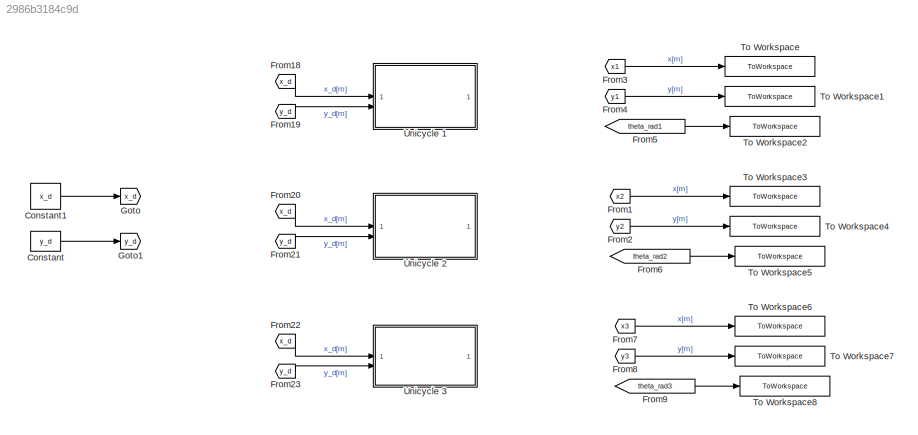
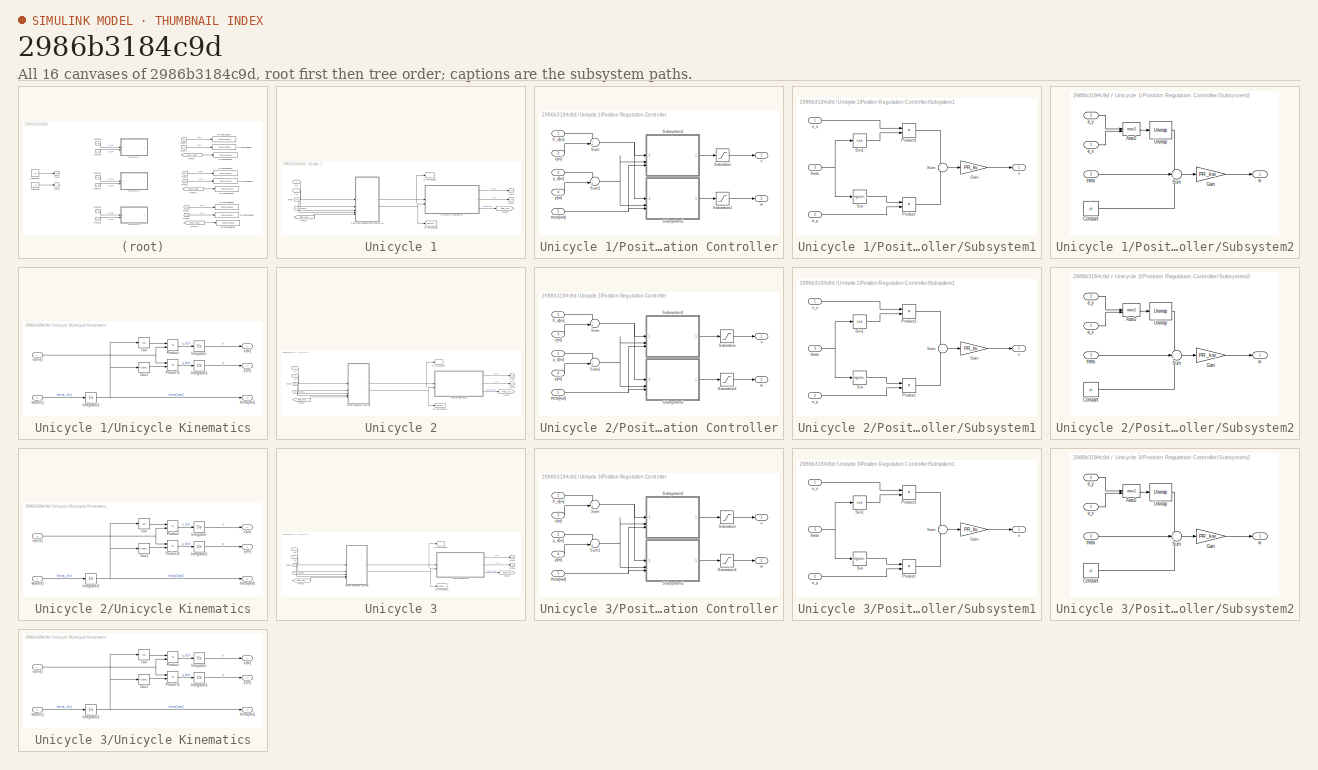
[diagram: thumbnail index - all 16 canvases of the model, root first then tree order]
MODEL slx_2986b3184c9d
KIND model
CONFIG AbsTol = auto
CONFIG EnableMultiTasking = off
CONFIG FixedStep = 1e-3
CONFIG MaxStep = 1e-3
CONFIG MinStep = auto
CONFIG RelTol = 1e-3
CONFIG SampleTimeConstraint = Unconstrained
CONFIG SolverName = ode4
CONFIG StartTime = 0.0
CONFIG StopTime = 50
BLOCK [Constant] Constant
  Value = y_d
BLOCK [Constant] Constant1
  Value = x_d
BLOCK [From] From1
  GotoTag = x2
  TagVisibility = global
BLOCK [From] From18
  GotoTag = x_d
  TagVisibility = global
BLOCK [From] From19
  GotoTag = y_d
  TagVisibility = global
BLOCK [From] From2
  GotoTag = y2
  TagVisibility = global
BLOCK [From] From20
  GotoTag = x_d
  TagVisibility = global
BLOCK [From] From21
  GotoTag = y_d
  TagVisibility = global
BLOCK [From] From22
  GotoTag = x_d
  TagVisibility = global
BLOCK [From] From23
  GotoTag = y_d
  TagVisibility = global
BLOCK [From] From3
  GotoTag = x1
  TagVisibility = global
BLOCK [From] From4
  GotoTag = y1
  TagVisibility = global
BLOCK [From] From5
  GotoTag = theta_rad1
  TagVisibility = global
BLOCK [From] From6
  GotoTag = theta_rad2
  TagVisibility = global
BLOCK [From] From7
  GotoTag = x3
  TagVisibility = global
BLOCK [From] From8
  GotoTag = y3
  TagVisibility = global
BLOCK [From] From9
  GotoTag = theta_rad3
  TagVisibility = global
BLOCK [Goto] Goto
  GotoTag = x_d
  TagVisibility = global
BLOCK [Goto] Goto1
  GotoTag = y_d
  TagVisibility = global
BLOCK [ToWorkspace] To Workspace
  FixptAsFi = on
  MaxDataPoints = inf
  SampleTime = -1
  SaveFormat = Structure With Time
  VariableName = x1
BLOCK [ToWorkspace] To Workspace1
  FixptAsFi = on
  MaxDataPoints = inf
  SampleTime = -1
  SaveFormat = Structure With Time
  VariableName = y1
BLOCK [ToWorkspace] To Workspace2
  FixptAsFi = on
  MaxDataPoints = inf
  SampleTime = -1
  SaveFormat = Structure With Time
  VariableName = theta_rad1
BLOCK [ToWorkspace] To Workspace3
  FixptAsFi = on
  MaxDataPoints = inf
  SampleTime = -1
  SaveFormat = Structure With Time
  VariableName = x2
BLOCK [ToWorkspace] To Workspace4
  FixptAsFi = on
  MaxDataPoints = inf
  SampleTime = -1
  SaveFormat = Structure With Time
  VariableName = y2
BLOCK [ToWorkspace] To Workspace5
  FixptAsFi = on
  MaxDataPoints = inf
  SampleTime = -1
  SaveFormat = Structure With Time
  VariableName = theta_rad2
BLOCK [ToWorkspace] To Workspace6
  FixptAsFi = on
  MaxDataPoints = inf
  SampleTime = -1
  SaveFormat = Structure With Time
  VariableName = x3
BLOCK [ToWorkspace] To Workspace7
  FixptAsFi = on
  MaxDataPoints = inf
  SampleTime = -1
  SaveFormat = Structure With Time
  VariableName = y3
BLOCK [ToWorkspace] To Workspace8
  FixptAsFi = on
  MaxDataPoints = inf
  SampleTime = -1
  SaveFormat = Structure With Time
  VariableName = theta_rad3
BLOCK [SubSystem] Unicycle 1
BLOCK [From] Unicycle 1/From
  GotoTag = x1
  TagVisibility = global
BLOCK [From] Unicycle 1/From1
  GotoTag = y1
  TagVisibility = global
BLOCK [From] Unicycle 1/From2
  GotoTag = theta_rad1
  TagVisibility = global
BLOCK [Goto] Unicycle 1/Goto
  GotoTag = x1
  TagVisibility = global
BLOCK [Goto] Unicycle 1/Goto1
  GotoTag = y1
  TagVisibility = global
BLOCK [Goto] Unicycle 1/Goto2
  GotoTag = theta_rad1
  TagVisibility = global
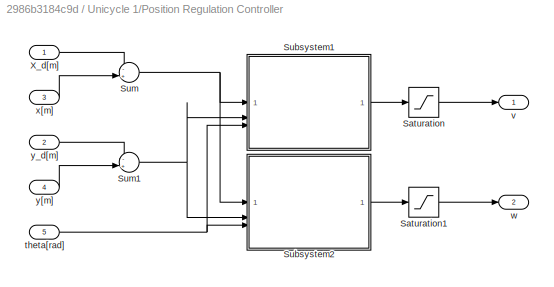
BLOCK [SubSystem] Unicycle 1/Position Regulation Controller
BLOCK [Saturate] Unicycle 1/Position Regulation Controller/Saturation
  LowerLimit = -v_sat
  UpperLimit = v_sat
BLOCK [Saturate] Unicycle 1/Position Regulation Controller/Saturation1
  LowerLimit = -w_sat
  UpperLimit = w_sat
BLOCK [SubSystem] Unicycle 1/Position Regulation Controller/Subsystem1
BLOCK [Gain] Unicycle 1/Position Regulation Controller/Subsystem1/Gain
  Gain = PR_kv
BLOCK [Product] Unicycle 1/Position Regulation Controller/Subsystem1/Product
BLOCK [Product] Unicycle 1/Position Regulation Controller/Subsystem1/Product1
BLOCK [Trigonometry] Unicycle 1/Position Regulation Controller/Subsystem1/Sin
BLOCK [Trigonometry] Unicycle 1/Position Regulation Controller/Subsystem1/Sin1
  Operator = cos
BLOCK [Sum] Unicycle 1/Position Regulation Controller/Subsystem1/Sum
  Inputs = --
BLOCK [Inport] Unicycle 1/Position Regulation Controller/Subsystem1/e_x
BLOCK [Inport] Unicycle 1/Position Regulation Controller/Subsystem1/e_y
  Port = 2
BLOCK [Inport] Unicycle 1/Position Regulation Controller/Subsystem1/theta
  Port = 3
BLOCK [Outport] Unicycle 1/Position Regulation Controller/Subsystem1/v
BLOCK [SubSystem] Unicycle 1/Position Regulation Controller/Subsystem2
BLOCK [Trigonometry] Unicycle 1/Position Regulation Controller/Subsystem2/Atan2
  ApproximationMethod = Lookup
  NumberOfDataPoints = 2
  Operator = atan2
BLOCK [Constant] Unicycle 1/Position Regulation Controller/Subsystem2/Constant
  Value = pi
BLOCK [Gain] Unicycle 1/Position Regulation Controller/Subsystem2/Gain
  Gain = PR_kw
BLOCK [Sum] Unicycle 1/Position Regulation Controller/Subsystem2/Sum
  Inputs = +-+
BLOCK [Reference] Unicycle 1/Position Regulation Controller/Subsystem2/Unwrap  REF=dspsigops/Unwrap
  SourceBlock = dspsigops/Unwrap
  SourceType = Unwrap
  UserDataPersistent = on
BLOCK [Inport] Unicycle 1/Position Regulation Controller/Subsystem2/e_x
BLOCK [Inport] Unicycle 1/Position Regulation Controller/Subsystem2/e_y
  Port = 2
BLOCK [Inport] Unicycle 1/Position Regulation Controller/Subsystem2/theta
  Port = 3
BLOCK [Outport] Unicycle 1/Position Regulation Controller/Subsystem2/w
BLOCK [Sum] Unicycle 1/Position Regulation Controller/Sum
  Inputs = -+
BLOCK [Sum] Unicycle 1/Position Regulation Controller/Sum1
  Inputs = -+
BLOCK [Inport] Unicycle 1/Position Regulation Controller/X_d[m]
BLOCK [Inport] Unicycle 1/Position Regulation Controller/theta[rad]
  Port = 5
BLOCK [Outport] Unicycle 1/Position Regulation Controller/v
BLOCK [Outport] Unicycle 1/Position Regulation Controller/w
  Port = 2
BLOCK [Inport] Unicycle 1/Position Regulation Controller/x[m]
  Port = 3
BLOCK [Inport] Unicycle 1/Position Regulation Controller/y[m]
  Port = 4
BLOCK [Inport] Unicycle 1/Position Regulation Controller/y_d[m]
  Port = 2
BLOCK [ToWorkspace] Unicycle 1/To Workspace
  FixptAsFi = on
  MaxDataPoints = inf
  SampleTime = -1
  SaveFormat = Structure With Time
  VariableName = v1
BLOCK [ToWorkspace] Unicycle 1/To Workspace1
  FixptAsFi = on
  MaxDataPoints = inf
  SampleTime = -1
  SaveFormat = Structure With Time
  VariableName = w1
BLOCK [SubSystem] Unicycle 1/Unicycle Kinematics
BLOCK [Trigonometry] Unicycle 1/Unicycle Kinematics/Cos
  Operator = cos
BLOCK [Trigonometry] Unicycle 1/Unicycle Kinematics/Cos1
BLOCK [Integrator] Unicycle 1/Unicycle Kinematics/Integrator
  InitialCondition = p1(1)
BLOCK [Integrator] Unicycle 1/Unicycle Kinematics/Integrator1
  InitialCondition = p1(2)
BLOCK [Integrator] Unicycle 1/Unicycle Kinematics/Integrator2
  InitialCondition = p1(3)
BLOCK [Product] Unicycle 1/Unicycle Kinematics/Product
BLOCK [Product] Unicycle 1/Unicycle Kinematics/Product1
BLOCK [Outport] Unicycle 1/Unicycle Kinematics/theta[rad]
  Port = 3
BLOCK [Inport] Unicycle 1/Unicycle Kinematics/v[m//s]
BLOCK [Inport] Unicycle 1/Unicycle Kinematics/w[rad//s]
  Port = 2
BLOCK [Outport] Unicycle 1/Unicycle Kinematics/x[m]
BLOCK [Outport] Unicycle 1/Unicycle Kinematics/y[m]
  Port = 2
BLOCK [Inport] Unicycle 1/x_d
BLOCK [Inport] Unicycle 1/y_d
  Port = 2
BLOCK [SubSystem] Unicycle 2
BLOCK [From] Unicycle 2/From
  GotoTag = x2
  TagVisibility = global
BLOCK [From] Unicycle 2/From1
  GotoTag = y2
  TagVisibility = global
BLOCK [From] Unicycle 2/From2
  GotoTag = theta_rad2
  TagVisibility = global
BLOCK [Goto] Unicycle 2/Goto
  GotoTag = x2
  TagVisibility = global
BLOCK [Goto] Unicycle 2/Goto1
  GotoTag = y2
  TagVisibility = global
BLOCK [Goto] Unicycle 2/Goto2
  GotoTag = theta_rad2
  TagVisibility = global
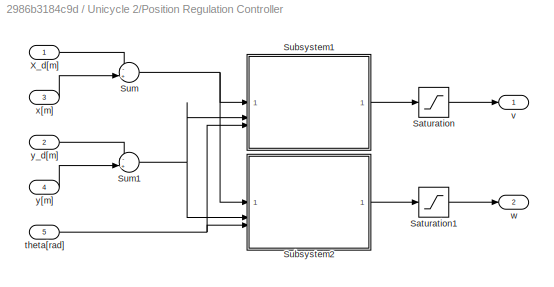
BLOCK [SubSystem] Unicycle 2/Position Regulation Controller
BLOCK [Saturate] Unicycle 2/Position Regulation Controller/Saturation
  LowerLimit = -v_sat
  UpperLimit = v_sat
BLOCK [Saturate] Unicycle 2/Position Regulation Controller/Saturation1
  LowerLimit = -w_sat
  UpperLimit = w_sat
BLOCK [SubSystem] Unicycle 2/Position Regulation Controller/Subsystem1
BLOCK [Gain] Unicycle 2/Position Regulation Controller/Subsystem1/Gain
  Gain = PR_kv
BLOCK [Product] Unicycle 2/Position Regulation Controller/Subsystem1/Product
BLOCK [Product] Unicycle 2/Position Regulation Controller/Subsystem1/Product1
BLOCK [Trigonometry] Unicycle 2/Position Regulation Controller/Subsystem1/Sin
BLOCK [Trigonometry] Unicycle 2/Position Regulation Controller/Subsystem1/Sin1
  Operator = cos
BLOCK [Sum] Unicycle 2/Position Regulation Controller/Subsystem1/Sum
  Inputs = --
BLOCK [Inport] Unicycle 2/Position Regulation Controller/Subsystem1/e_x
BLOCK [Inport] Unicycle 2/Position Regulation Controller/Subsystem1/e_y
  Port = 2
BLOCK [Inport] Unicycle 2/Position Regulation Controller/Subsystem1/theta
  Port = 3
BLOCK [Outport] Unicycle 2/Position Regulation Controller/Subsystem1/v
BLOCK [SubSystem] Unicycle 2/Position Regulation Controller/Subsystem2
BLOCK [Trigonometry] Unicycle 2/Position Regulation Controller/Subsystem2/Atan2
  ApproximationMethod = Lookup
  NumberOfDataPoints = 2
  Operator = atan2
BLOCK [Constant] Unicycle 2/Position Regulation Controller/Subsystem2/Constant
  Value = pi
BLOCK [Gain] Unicycle 2/Position Regulation Controller/Subsystem2/Gain
  Gain = PR_kw
BLOCK [Sum] Unicycle 2/Position Regulation Controller/Subsystem2/Sum
  Inputs = +-+
BLOCK [Reference] Unicycle 2/Position Regulation Controller/Subsystem2/Unwrap  REF=dspsigops/Unwrap
  SourceBlock = dspsigops/Unwrap
  SourceType = Unwrap
  UserDataPersistent = on
BLOCK [Inport] Unicycle 2/Position Regulation Controller/Subsystem2/e_x
BLOCK [Inport] Unicycle 2/Position Regulation Controller/Subsystem2/e_y
  Port = 2
BLOCK [Inport] Unicycle 2/Position Regulation Controller/Subsystem2/theta
  Port = 3
BLOCK [Outport] Unicycle 2/Position Regulation Controller/Subsystem2/w
BLOCK [Sum] Unicycle 2/Position Regulation Controller/Sum
  Inputs = -+
BLOCK [Sum] Unicycle 2/Position Regulation Controller/Sum1
  Inputs = -+
BLOCK [Inport] Unicycle 2/Position Regulation Controller/X_d[m]
BLOCK [Inport] Unicycle 2/Position Regulation Controller/theta[rad]
  Port = 5
BLOCK [Outport] Unicycle 2/Position Regulation Controller/v
BLOCK [Outport] Unicycle 2/Position Regulation Controller/w
  Port = 2
BLOCK [Inport] Unicycle 2/Position Regulation Controller/x[m]
  Port = 3
BLOCK [Inport] Unicycle 2/Position Regulation Controller/y[m]
  Port = 4
BLOCK [Inport] Unicycle 2/Position Regulation Controller/y_d[m]
  Port = 2
BLOCK [ToWorkspace] Unicycle 2/To Workspace
  FixptAsFi = on
  MaxDataPoints = inf
  SampleTime = -1
  SaveFormat = Structure With Time
  VariableName = v2
BLOCK [ToWorkspace] Unicycle 2/To Workspace1
  FixptAsFi = on
  MaxDataPoints = inf
  SampleTime = -1
  SaveFormat = Structure With Time
  VariableName = w2
BLOCK [SubSystem] Unicycle 2/Unicycle Kinematics
BLOCK [Trigonometry] Unicycle 2/Unicycle Kinematics/Cos
  Operator = cos
BLOCK [Trigonometry] Unicycle 2/Unicycle Kinematics/Cos1
BLOCK [Integrator] Unicycle 2/Unicycle Kinematics/Integrator
  InitialCondition = p2(1)
BLOCK [Integrator] Unicycle 2/Unicycle Kinematics/Integrator1
  InitialCondition = p2(2)
BLOCK [Integrator] Unicycle 2/Unicycle Kinematics/Integrator2
  InitialCondition = p2(3)
BLOCK [Product] Unicycle 2/Unicycle Kinematics/Product
BLOCK [Product] Unicycle 2/Unicycle Kinematics/Product1
BLOCK [Outport] Unicycle 2/Unicycle Kinematics/theta[rad]
  Port = 3
BLOCK [Inport] Unicycle 2/Unicycle Kinematics/v[m//s]
BLOCK [Inport] Unicycle 2/Unicycle Kinematics/w[rad//s]
  Port = 2
BLOCK [Outport] Unicycle 2/Unicycle Kinematics/x[m]
BLOCK [Outport] Unicycle 2/Unicycle Kinematics/y[m]
  Port = 2
BLOCK [Inport] Unicycle 2/x_d
BLOCK [Inport] Unicycle 2/y_d
  Port = 2
BLOCK [SubSystem] Unicycle 3
BLOCK [From] Unicycle 3/From
  GotoTag = x3
  TagVisibility = global
BLOCK [From] Unicycle 3/From1
  GotoTag = y3
  TagVisibility = global
BLOCK [From] Unicycle 3/From2
  GotoTag = theta_rad3
  TagVisibility = global
BLOCK [Goto] Unicycle 3/Goto
  GotoTag = x3
  TagVisibility = global
BLOCK [Goto] Unicycle 3/Goto1
  GotoTag = y3
  TagVisibility = global
BLOCK [Goto] Unicycle 3/Goto2
  GotoTag = theta_rad3
  TagVisibility = global
BLOCK [SubSystem] Unicycle 3/Position Regulation Controller
BLOCK [Saturate] Unicycle 3/Position Regulation Controller/Saturation
  LowerLimit = -v_sat
  UpperLimit = v_sat
BLOCK [Saturate] Unicycle 3/Position Regulation Controller/Saturation1
  LowerLimit = -w_sat
  UpperLimit = w_sat
BLOCK [SubSystem] Unicycle 3/Position Regulation Controller/Subsystem1
BLOCK [Gain] Unicycle 3/Position Regulation Controller/Subsystem1/Gain
  Gain = PR_kv
BLOCK [Product] Unicycle 3/Position Regulation Controller/Subsystem1/Product
BLOCK [Product] Unicycle 3/Position Regulation Controller/Subsystem1/Product1
BLOCK [Trigonometry] Unicycle 3/Position Regulation Controller/Subsystem1/Sin
BLOCK [Trigonometry] Unicycle 3/Position Regulation Controller/Subsystem1/Sin1
  Operator = cos
BLOCK [Sum] Unicycle 3/Position Regulation Controller/Subsystem1/Sum
  Inputs = --
BLOCK [Inport] Unicycle 3/Position Regulation Controller/Subsystem1/e_x
BLOCK [Inport] Unicycle 3/Position Regulation Controller/Subsystem1/e_y
  Port = 2
BLOCK [Inport] Unicycle 3/Position Regulation Controller/Subsystem1/theta
  Port = 3
BLOCK [Outport] Unicycle 3/Position Regulation Controller/Subsystem1/v
BLOCK [SubSystem] Unicycle 3/Position Regulation Controller/Subsystem2
BLOCK [Trigonometry] Unicycle 3/Position Regulation Controller/Subsystem2/Atan2
  ApproximationMethod = Lookup
  NumberOfDataPoints = 2
  Operator = atan2
BLOCK [Constant] Unicycle 3/Position Regulation Controller/Subsystem2/Constant
  Value = pi
BLOCK [Gain] Unicycle 3/Position Regulation Controller/Subsystem2/Gain
  Gain = PR_kw
BLOCK [Sum] Unicycle 3/Position Regulation Controller/Subsystem2/Sum
  Inputs = +-+
BLOCK [Reference] Unicycle 3/Position Regulation Controller/Subsystem2/Unwrap  REF=dspsigops/Unwrap
  SourceBlock = dspsigops/Unwrap
  SourceType = Unwrap
  UserDataPersistent = on
BLOCK [Inport] Unicycle 3/Position Regulation Controller/Subsystem2/e_x
BLOCK [Inport] Unicycle 3/Position Regulation Controller/Subsystem2/e_y
  Port = 2
BLOCK [Inport] Unicycle 3/Position Regulation Controller/Subsystem2/theta
  Port = 3
BLOCK [Outport] Unicycle 3/Position Regulation Controller/Subsystem2/w
BLOCK [Sum] Unicycle 3/Position Regulation Controller/Sum
  Inputs = -+
BLOCK [Sum] Unicycle 3/Position Regulation Controller/Sum1
  Inputs = -+
BLOCK [Inport] Unicycle 3/Position Regulation Controller/X_d[m]
BLOCK [Inport] Unicycle 3/Position Regulation Controller/theta[rad]
  Port = 5
BLOCK [Outport] Unicycle 3/Position Regulation Controller/v
BLOCK [Outport] Unicycle 3/Position Regulation Controller/w
  Port = 2
BLOCK [Inport] Unicycle 3/Position Regulation Controller/x[m]
  Port = 3
BLOCK [Inport] Unicycle 3/Position Regulation Controller/y[m]
  Port = 4
BLOCK [Inport] Unicycle 3/Position Regulation Controller/y_d[m]
  Port = 2
BLOCK [ToWorkspace] Unicycle 3/To Workspace
  FixptAsFi = on
  MaxDataPoints = inf
  SampleTime = -1
  SaveFormat = Structure With Time
  VariableName = v3
BLOCK [ToWorkspace] Unicycle 3/To Workspace1
  FixptAsFi = on
  MaxDataPoints = inf
  SampleTime = -1
  SaveFormat = Structure With Time
  VariableName = w3
BLOCK [SubSystem] Unicycle 3/Unicycle Kinematics
BLOCK [Trigonometry] Unicycle 3/Unicycle Kinematics/Cos
  Operator = cos
BLOCK [Trigonometry] Unicycle 3/Unicycle Kinematics/Cos1
BLOCK [Integrator] Unicycle 3/Unicycle Kinematics/Integrator
  InitialCondition = p3(1)
BLOCK [Integrator] Unicycle 3/Unicycle Kinematics/Integrator1
  InitialCondition = p3(2)
BLOCK [Integrator] Unicycle 3/Unicycle Kinematics/Integrator2
  InitialCondition = p3(3)
BLOCK [Product] Unicycle 3/Unicycle Kinematics/Product
BLOCK [Product] Unicycle 3/Unicycle Kinematics/Product1
BLOCK [Outport] Unicycle 3/Unicycle Kinematics/theta[rad]
  Port = 3
BLOCK [Inport] Unicycle 3/Unicycle Kinematics/v[m//s]
BLOCK [Inport] Unicycle 3/Unicycle Kinematics/w[rad//s]
  Port = 2
BLOCK [Outport] Unicycle 3/Unicycle Kinematics/x[m]
BLOCK [Outport] Unicycle 3/Unicycle Kinematics/y[m]
  Port = 2
BLOCK [Inport] Unicycle 3/x_d
BLOCK [Inport] Unicycle 3/y_d
  Port = 2
LINE Constant1:1 -> Goto:1
LINE Constant:1 -> Goto1:1
LINE From18:1 -> Unicycle 1:1
LINE From19:1 -> Unicycle 1:2
LINE From1:1 -> To Workspace3:1
LINE From20:1 -> Unicycle 2:1
LINE From21:1 -> Unicycle 2:2
LINE From22:1 -> Unicycle 3:1
LINE From23:1 -> Unicycle 3:2
LINE From2:1 -> To Workspace4:1
LINE From3:1 -> To Workspace:1
LINE From4:1 -> To Workspace1:1
LINE From5:1 -> To Workspace2:1
LINE From6:1 -> To Workspace5:1
LINE From7:1 -> To Workspace6:1
LINE From8:1 -> To Workspace7:1
LINE From9:1 -> To Workspace8:1
LINE Unicycle 1/From1:1 -> Unicycle 1/Position Regulation Controller:4
LINE Unicycle 1/From2:1 -> Unicycle 1/Position Regulation Controller:5
LINE Unicycle 1/From:1 -> Unicycle 1/Position Regulation Controller:3
LINE Unicycle 1/Position Regulation Controller/Saturation1:1 -> Unicycle 1/Position Regulation Controller/w:1
LINE Unicycle 1/Position Regulation Controller/Saturation:1 -> Unicycle 1/Position Regulation Controller/v:1
LINE Unicycle 1/Position Regulation Controller/Subsystem1/Gain:1 -> Unicycle 1/Position Regulation Controller/Subsystem1/v:1
LINE Unicycle 1/Position Regulation Controller/Subsystem1/Product1:1 -> Unicycle 1/Position Regulation Controller/Subsystem1/Sum:1
LINE Unicycle 1/Position Regulation Controller/Subsystem1/Product:1 -> Unicycle 1/Position Regulation Controller/Subsystem1/Sum:2
LINE Unicycle 1/Position Regulation Controller/Subsystem1/Sin1:1 -> Unicycle 1/Position Regulation Controller/Subsystem1/Product1:2
LINE Unicycle 1/Position Regulation Controller/Subsystem1/Sin:1 -> Unicycle 1/Position Regulation Controller/Subsystem1/Product:1
LINE Unicycle 1/Position Regulation Controller/Subsystem1/Sum:1 -> Unicycle 1/Position Regulation Controller/Subsystem1/Gain:1
LINE Unicycle 1/Position Regulation Controller/Subsystem1/e_x:1 -> Unicycle 1/Position Regulation Controller/Subsystem1/Product1:1
LINE Unicycle 1/Position Regulation Controller/Subsystem1/e_y:1 -> Unicycle 1/Position Regulation Controller/Subsystem1/Product:2
NET Unicycle 1/Position Regulation Controller/Subsystem1/theta:1 -> Unicycle 1/Position Regulation Controller/Subsystem1/Sin1:1, Unicycle 1/Position Regulation Controller/Subsystem1/Sin:1
LINE Unicycle 1/Position Regulation Controller/Subsystem1:1 -> Unicycle 1/Position Regulation Controller/Saturation:1
LINE Unicycle 1/Position Regulation Controller/Subsystem2/Atan2:1 -> Unicycle 1/Position Regulation Controller/Subsystem2/Unwrap:1
LINE Unicycle 1/Position Regulation Controller/Subsystem2/Constant:1 -> Unicycle 1/Position Regulation Controller/Subsystem2/Sum:3
LINE Unicycle 1/Position Regulation Controller/Subsystem2/Gain:1 -> Unicycle 1/Position Regulation Controller/Subsystem2/w:1
LINE Unicycle 1/Position Regulation Controller/Subsystem2/Sum:1 -> Unicycle 1/Position Regulation Controller/Subsystem2/Gain:1
LINE Unicycle 1/Position Regulation Controller/Subsystem2/Unwrap:1 -> Unicycle 1/Position Regulation Controller/Subsystem2/Sum:1
LINE Unicycle 1/Position Regulation Controller/Subsystem2/e_x:1 -> Unicycle 1/Position Regulation Controller/Subsystem2/Atan2:2
LINE Unicycle 1/Position Regulation Controller/Subsystem2/e_y:1 -> Unicycle 1/Position Regulation Controller/Subsystem2/Atan2:1
LINE Unicycle 1/Position Regulation Controller/Subsystem2/theta:1 -> Unicycle 1/Position Regulation Controller/Subsystem2/Sum:2
LINE Unicycle 1/Position Regulation Controller/Subsystem2:1 -> Unicycle 1/Position Regulation Controller/Saturation1:1
NET Unicycle 1/Position Regulation Controller/Sum1:1 -> Unicycle 1/Position Regulation Controller/Subsystem1:2, Unicycle 1/Position Regulation Controller/Subsystem2:2
NET Unicycle 1/Position Regulation Controller/Sum:1 -> Unicycle 1/Position Regulation Controller/Subsystem1:1, Unicycle 1/Position Regulation Controller/Subsystem2:1
LINE Unicycle 1/Position Regulation Controller/X_d[m]:1 -> Unicycle 1/Position Regulation Controller/Sum:1
NET Unicycle 1/Position Regulation Controller/theta[rad]:1 -> Unicycle 1/Position Regulation Controller/Subsystem1:3, Unicycle 1/Position Regulation Controller/Subsystem2:3
LINE Unicycle 1/Position Regulation Controller/x[m]:1 -> Unicycle 1/Position Regulation Controller/Sum:2
LINE Unicycle 1/Position Regulation Controller/y[m]:1 -> Unicycle 1/Position Regulation Controller/Sum1:2
LINE Unicycle 1/Position Regulation Controller/y_d[m]:1 -> Unicycle 1/Position Regulation Controller/Sum1:1
NET Unicycle 1/Position Regulation Controller:1 -> Unicycle 1/To Workspace:1, Unicycle 1/Unicycle Kinematics:1
NET Unicycle 1/Position Regulation Controller:2 -> Unicycle 1/To Workspace1:1, Unicycle 1/Unicycle Kinematics:2
LINE Unicycle 1/Unicycle Kinematics/Cos1:1 -> Unicycle 1/Unicycle Kinematics/Product1:2
LINE Unicycle 1/Unicycle Kinematics/Cos:1 -> Unicycle 1/Unicycle Kinematics/Product:1
LINE Unicycle 1/Unicycle Kinematics/Integrator1:1 -> Unicycle 1/Unicycle Kinematics/y[m]:1
NET Unicycle 1/Unicycle Kinematics/Integrator2:1 -> Unicycle 1/Unicycle Kinematics/Cos1:1, Unicycle 1/Unicycle Kinematics/Cos:1, Unicycle 1/Unicycle Kinematics/theta[rad]:1
LINE Unicycle 1/Unicycle Kinematics/Integrator:1 -> Unicycle 1/Unicycle Kinematics/x[m]:1
LINE Unicycle 1/Unicycle Kinematics/Product1:1 -> Unicycle 1/Unicycle Kinematics/Integrator1:1
LINE Unicycle 1/Unicycle Kinematics/Product:1 -> Unicycle 1/Unicycle Kinematics/Integrator:1
NET Unicycle 1/Unicycle Kinematics/v[m//s]:1 -> Unicycle 1/Unicycle Kinematics/Product1:1, Unicycle 1/Unicycle Kinematics/Product:2
LINE Unicycle 1/Unicycle Kinematics/w[rad//s]:1 -> Unicycle 1/Unicycle Kinematics/Integrator2:1
LINE Unicycle 1/Unicycle Kinematics:1 -> Unicycle 1/Goto:1
LINE Unicycle 1/Unicycle Kinematics:2 -> Unicycle 1/Goto1:1
LINE Unicycle 1/Unicycle Kinematics:3 -> Unicycle 1/Goto2:1
LINE Unicycle 1/x_d:1 -> Unicycle 1/Position Regulation Controller:1
LINE Unicycle 1/y_d:1 -> Unicycle 1/Position Regulation Controller:2
LINE Unicycle 2/From1:1 -> Unicycle 2/Position Regulation Controller:4
LINE Unicycle 2/From2:1 -> Unicycle 2/Position Regulation Controller:5
LINE Unicycle 2/From:1 -> Unicycle 2/Position Regulation Controller:3
LINE Unicycle 2/Position Regulation Controller/Saturation1:1 -> Unicycle 2/Position Regulation Controller/w:1
LINE Unicycle 2/Position Regulation Controller/Saturation:1 -> Unicycle 2/Position Regulation Controller/v:1
LINE Unicycle 2/Position Regulation Controller/Subsystem1/Gain:1 -> Unicycle 2/Position Regulation Controller/Subsystem1/v:1
LINE Unicycle 2/Position Regulation Controller/Subsystem1/Product1:1 -> Unicycle 2/Position Regulation Controller/Subsystem1/Sum:1
LINE Unicycle 2/Position Regulation Controller/Subsystem1/Product:1 -> Unicycle 2/Position Regulation Controller/Subsystem1/Sum:2
LINE Unicycle 2/Position Regulation Controller/Subsystem1/Sin1:1 -> Unicycle 2/Position Regulation Controller/Subsystem1/Product1:2
LINE Unicycle 2/Position Regulation Controller/Subsystem1/Sin:1 -> Unicycle 2/Position Regulation Controller/Subsystem1/Product:1
LINE Unicycle 2/Position Regulation Controller/Subsystem1/Sum:1 -> Unicycle 2/Position Regulation Controller/Subsystem1/Gain:1
LINE Unicycle 2/Position Regulation Controller/Subsystem1/e_x:1 -> Unicycle 2/Position Regulation Controller/Subsystem1/Product1:1
LINE Unicycle 2/Position Regulation Controller/Subsystem1/e_y:1 -> Unicycle 2/Position Regulation Controller/Subsystem1/Product:2
NET Unicycle 2/Position Regulation Controller/Subsystem1/theta:1 -> Unicycle 2/Position Regulation Controller/Subsystem1/Sin1:1, Unicycle 2/Position Regulation Controller/Subsystem1/Sin:1
LINE Unicycle 2/Position Regulation Controller/Subsystem1:1 -> Unicycle 2/Position Regulation Controller/Saturation:1
LINE Unicycle 2/Position Regulation Controller/Subsystem2/Atan2:1 -> Unicycle 2/Position Regulation Controller/Subsystem2/Unwrap:1
LINE Unicycle 2/Position Regulation Controller/Subsystem2/Constant:1 -> Unicycle 2/Position Regulation Controller/Subsystem2/Sum:3
LINE Unicycle 2/Position Regulation Controller/Subsystem2/Gain:1 -> Unicycle 2/Position Regulation Controller/Subsystem2/w:1
LINE Unicycle 2/Position Regulation Controller/Subsystem2/Sum:1 -> Unicycle 2/Position Regulation Controller/Subsystem2/Gain:1
LINE Unicycle 2/Position Regulation Controller/Subsystem2/Unwrap:1 -> Unicycle 2/Position Regulation Controller/Subsystem2/Sum:1
LINE Unicycle 2/Position Regulation Controller/Subsystem2/e_x:1 -> Unicycle 2/Position Regulation Controller/Subsystem2/Atan2:2
LINE Unicycle 2/Position Regulation Controller/Subsystem2/e_y:1 -> Unicycle 2/Position Regulation Controller/Subsystem2/Atan2:1
LINE Unicycle 2/Position Regulation Controller/Subsystem2/theta:1 -> Unicycle 2/Position Regulation Controller/Subsystem2/Sum:2
LINE Unicycle 2/Position Regulation Controller/Subsystem2:1 -> Unicycle 2/Position Regulation Controller/Saturation1:1
NET Unicycle 2/Position Regulation Controller/Sum1:1 -> Unicycle 2/Position Regulation Controller/Subsystem1:2, Unicycle 2/Position Regulation Controller/Subsystem2:2
NET Unicycle 2/Position Regulation Controller/Sum:1 -> Unicycle 2/Position Regulation Controller/Subsystem1:1, Unicycle 2/Position Regulation Controller/Subsystem2:1
LINE Unicycle 2/Position Regulation Controller/X_d[m]:1 -> Unicycle 2/Position Regulation Controller/Sum:1
NET Unicycle 2/Position Regulation Controller/theta[rad]:1 -> Unicycle 2/Position Regulation Controller/Subsystem1:3, Unicycle 2/Position Regulation Controller/Subsystem2:3
LINE Unicycle 2/Position Regulation Controller/x[m]:1 -> Unicycle 2/Position Regulation Controller/Sum:2
LINE Unicycle 2/Position Regulation Controller/y[m]:1 -> Unicycle 2/Position Regulation Controller/Sum1:2
LINE Unicycle 2/Position Regulation Controller/y_d[m]:1 -> Unicycle 2/Position Regulation Controller/Sum1:1
NET Unicycle 2/Position Regulation Controller:1 -> Unicycle 2/To Workspace:1, Unicycle 2/Unicycle Kinematics:1
NET Unicycle 2/Position Regulation Controller:2 -> Unicycle 2/To Workspace1:1, Unicycle 2/Unicycle Kinematics:2
LINE Unicycle 2/Unicycle Kinematics/Cos1:1 -> Unicycle 2/Unicycle Kinematics/Product1:2
LINE Unicycle 2/Unicycle Kinematics/Cos:1 -> Unicycle 2/Unicycle Kinematics/Product:1
LINE Unicycle 2/Unicycle Kinematics/Integrator1:1 -> Unicycle 2/Unicycle Kinematics/y[m]:1
NET Unicycle 2/Unicycle Kinematics/Integrator2:1 -> Unicycle 2/Unicycle Kinematics/Cos1:1, Unicycle 2/Unicycle Kinematics/Cos:1, Unicycle 2/Unicycle Kinematics/theta[rad]:1
LINE Unicycle 2/Unicycle Kinematics/Integrator:1 -> Unicycle 2/Unicycle Kinematics/x[m]:1
LINE Unicycle 2/Unicycle Kinematics/Product1:1 -> Unicycle 2/Unicycle Kinematics/Integrator1:1
LINE Unicycle 2/Unicycle Kinematics/Product:1 -> Unicycle 2/Unicycle Kinematics/Integrator:1
NET Unicycle 2/Unicycle Kinematics/v[m//s]:1 -> Unicycle 2/Unicycle Kinematics/Product1:1, Unicycle 2/Unicycle Kinematics/Product:2
LINE Unicycle 2/Unicycle Kinematics/w[rad//s]:1 -> Unicycle 2/Unicycle Kinematics/Integrator2:1
LINE Unicycle 2/Unicycle Kinematics:1 -> Unicycle 2/Goto:1
LINE Unicycle 2/Unicycle Kinematics:2 -> Unicycle 2/Goto1:1
LINE Unicycle 2/Unicycle Kinematics:3 -> Unicycle 2/Goto2:1
LINE Unicycle 2/x_d:1 -> Unicycle 2/Position Regulation Controller:1
LINE Unicycle 2/y_d:1 -> Unicycle 2/Position Regulation Controller:2
LINE Unicycle 3/From1:1 -> Unicycle 3/Position Regulation Controller:4
LINE Unicycle 3/From2:1 -> Unicycle 3/Position Regulation Controller:5
LINE Unicycle 3/From:1 -> Unicycle 3/Position Regulation Controller:3
LINE Unicycle 3/Position Regulation Controller/Saturation1:1 -> Unicycle 3/Position Regulation Controller/w:1
LINE Unicycle 3/Position Regulation Controller/Saturation:1 -> Unicycle 3/Position Regulation Controller/v:1
LINE Unicycle 3/Position Regulation Controller/Subsystem1/Gain:1 -> Unicycle 3/Position Regulation Controller/Subsystem1/v:1
LINE Unicycle 3/Position Regulation Controller/Subsystem1/Product1:1 -> Unicycle 3/Position Regulation Controller/Subsystem1/Sum:1
LINE Unicycle 3/Position Regulation Controller/Subsystem1/Product:1 -> Unicycle 3/Position Regulation Controller/Subsystem1/Sum:2
LINE Unicycle 3/Position Regulation Controller/Subsystem1/Sin1:1 -> Unicycle 3/Position Regulation Controller/Subsystem1/Product1:2
LINE Unicycle 3/Position Regulation Controller/Subsystem1/Sin:1 -> Unicycle 3/Position Regulation Controller/Subsystem1/Product:1
LINE Unicycle 3/Position Regulation Controller/Subsystem1/Sum:1 -> Unicycle 3/Position Regulation Controller/Subsystem1/Gain:1
LINE Unicycle 3/Position Regulation Controller/Subsystem1/e_x:1 -> Unicycle 3/Position Regulation Controller/Subsystem1/Product1:1
LINE Unicycle 3/Position Regulation Controller/Subsystem1/e_y:1 -> Unicycle 3/Position Regulation Controller/Subsystem1/Product:2
NET Unicycle 3/Position Regulation Controller/Subsystem1/theta:1 -> Unicycle 3/Position Regulation Controller/Subsystem1/Sin1:1, Unicycle 3/Position Regulation Controller/Subsystem1/Sin:1
LINE Unicycle 3/Position Regulation Controller/Subsystem1:1 -> Unicycle 3/Position Regulation Controller/Saturation:1
LINE Unicycle 3/Position Regulation Controller/Subsystem2/Atan2:1 -> Unicycle 3/Position Regulation Controller/Subsystem2/Unwrap:1
LINE Unicycle 3/Position Regulation Controller/Subsystem2/Constant:1 -> Unicycle 3/Position Regulation Controller/Subsystem2/Sum:3
LINE Unicycle 3/Position Regulation Controller/Subsystem2/Gain:1 -> Unicycle 3/Position Regulation Controller/Subsystem2/w:1
LINE Unicycle 3/Position Regulation Controller/Subsystem2/Sum:1 -> Unicycle 3/Position Regulation Controller/Subsystem2/Gain:1
LINE Unicycle 3/Position Regulation Controller/Subsystem2/Unwrap:1 -> Unicycle 3/Position Regulation Controller/Subsystem2/Sum:1
LINE Unicycle 3/Position Regulation Controller/Subsystem2/e_x:1 -> Unicycle 3/Position Regulation Controller/Subsystem2/Atan2:2
LINE Unicycle 3/Position Regulation Controller/Subsystem2/e_y:1 -> Unicycle 3/Position Regulation Controller/Subsystem2/Atan2:1
LINE Unicycle 3/Position Regulation Controller/Subsystem2/theta:1 -> Unicycle 3/Position Regulation Controller/Subsystem2/Sum:2
LINE Unicycle 3/Position Regulation Controller/Subsystem2:1 -> Unicycle 3/Position Regulation Controller/Saturation1:1
NET Unicycle 3/Position Regulation Controller/Sum1:1 -> Unicycle 3/Position Regulation Controller/Subsystem1:2, Unicycle 3/Position Regulation Controller/Subsystem2:2
NET Unicycle 3/Position Regulation Controller/Sum:1 -> Unicycle 3/Position Regulation Controller/Subsystem1:1, Unicycle 3/Position Regulation Controller/Subsystem2:1
LINE Unicycle 3/Position Regulation Controller/X_d[m]:1 -> Unicycle 3/Position Regulation Controller/Sum:1
NET Unicycle 3/Position Regulation Controller/theta[rad]:1 -> Unicycle 3/Position Regulation Controller/Subsystem1:3, Unicycle 3/Position Regulation Controller/Subsystem2:3
LINE Unicycle 3/Position Regulation Controller/x[m]:1 -> Unicycle 3/Position Regulation Controller/Sum:2
LINE Unicycle 3/Position Regulation Controller/y[m]:1 -> Unicycle 3/Position Regulation Controller/Sum1:2
LINE Unicycle 3/Position Regulation Controller/y_d[m]:1 -> Unicycle 3/Position Regulation Controller/Sum1:1
NET Unicycle 3/Position Regulation Controller:1 -> Unicycle 3/To Workspace:1, Unicycle 3/Unicycle Kinematics:1
NET Unicycle 3/Position Regulation Controller:2 -> Unicycle 3/To Workspace1:1, Unicycle 3/Unicycle Kinematics:2
LINE Unicycle 3/Unicycle Kinematics/Cos1:1 -> Unicycle 3/Unicycle Kinematics/Product1:2
LINE Unicycle 3/Unicycle Kinematics/Cos:1 -> Unicycle 3/Unicycle Kinematics/Product:1
LINE Unicycle 3/Unicycle Kinematics/Integrator1:1 -> Unicycle 3/Unicycle Kinematics/y[m]:1
NET Unicycle 3/Unicycle Kinematics/Integrator2:1 -> Unicycle 3/Unicycle Kinematics/Cos1:1, Unicycle 3/Unicycle Kinematics/Cos:1, Unicycle 3/Unicycle Kinematics/theta[rad]:1
LINE Unicycle 3/Unicycle Kinematics/Integrator:1 -> Unicycle 3/Unicycle Kinematics/x[m]:1
LINE Unicycle 3/Unicycle Kinematics/Product1:1 -> Unicycle 3/Unicycle Kinematics/Integrator1:1
LINE Unicycle 3/Unicycle Kinematics/Product:1 -> Unicycle 3/Unicycle Kinematics/Integrator:1
NET Unicycle 3/Unicycle Kinematics/v[m//s]:1 -> Unicycle 3/Unicycle Kinematics/Product1:1, Unicycle 3/Unicycle Kinematics/Product:2
LINE Unicycle 3/Unicycle Kinematics/w[rad//s]:1 -> Unicycle 3/Unicycle Kinematics/Integrator2:1
LINE Unicycle 3/Unicycle Kinematics:1 -> Unicycle 3/Goto:1
LINE Unicycle 3/Unicycle Kinematics:2 -> Unicycle 3/Goto1:1
LINE Unicycle 3/Unicycle Kinematics:3 -> Unicycle 3/Goto2:1
LINE Unicycle 3/x_d:1 -> Unicycle 3/Position Regulation Controller:1
LINE Unicycle 3/y_d:1 -> Unicycle 3/Position Regulation Controller:2
note: NET lines group one-source signal fan-out (src -> all destinations, sorted); 1:1 wires keep LINE
